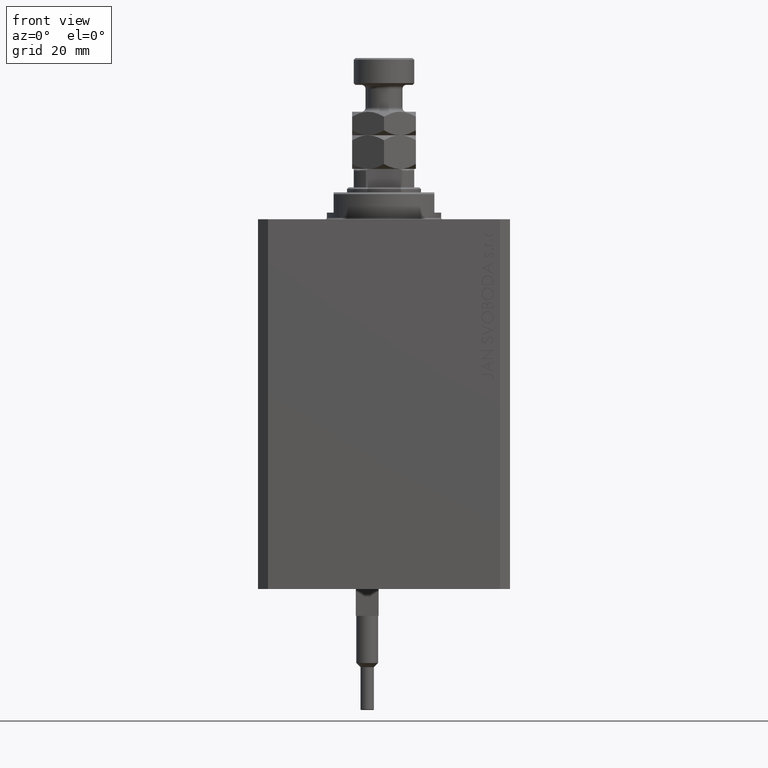
[diagram: clean part render]
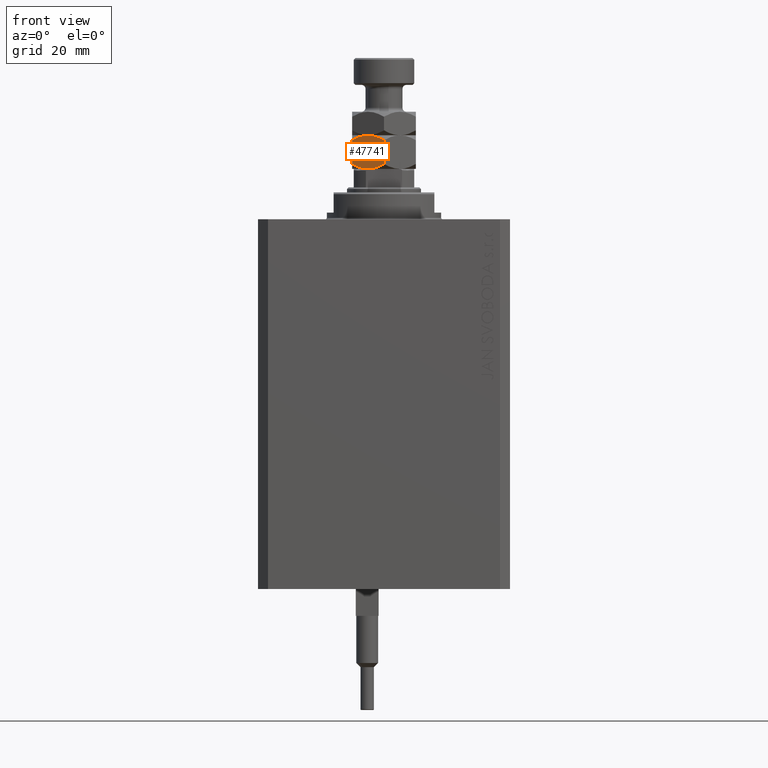
[diagram: same view with one face highlighted and labeled with its STEP entity id]
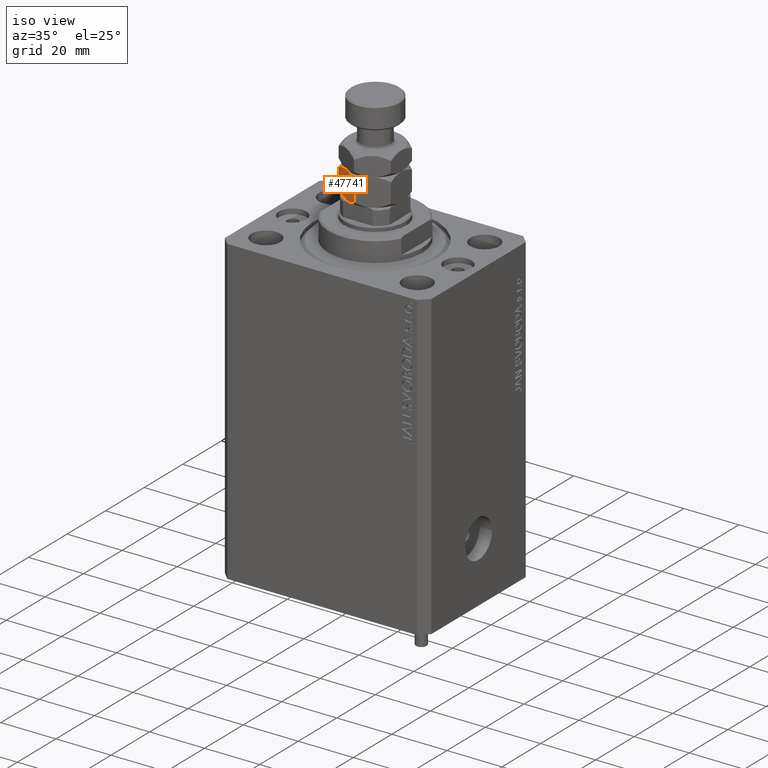
[diagram: same view with one face highlighted and labeled with its STEP entity id]
A machine part, front view. The second image highlights one B-rep face of the part: STEP entity #47741.
A second angle (iso view) of the same face is appended — the face is thin or edge-on in the first view.
In plain terms, the highlighted planar face has unit normal (0.5, 0.866, 0).
Its self-contained STEP definition (entity closure, byte-faithful):
#464 = CARTESIAN_POINT ( 'NONE',  ( -8.755131854751340370, -5.914877381471537632, 8.960394709567209404 ) ) ;
#1480 = CARTESIAN_POINT ( 'NONE',  ( -5.576215397865947665, -7.750225653585648189, 8.690558038829119507E-16 ) ) ;
#2822 = B_SPLINE_CURVE_WITH_KNOTS ( 'NONE', 3,
 ( #22395, #45506, #26159, #44764, #21906, #33946, #29938, #14146 ),
 .UNSPECIFIED., .F., .F.,
 ( 4, 2, 2, 4 ),
 ( 2.544312669954764994E-07, 0.002843014744722341131, 0.004264394901450013937, 0.005685775058177687177 ),
 .UNSPECIFIED. ) ;
#2850 = DIRECTION ( 'NONE',  ( -0.8660254037844387076, 0.4999999999999998890, 0.000000000000000000 ) ) ;
#4319 = EDGE_CURVE ( 'NONE', #8453, #39325, #22872, .T. ) ;
#6131 = CARTESIAN_POINT ( 'NONE',  ( -3.923784602134047894, -8.704257018318688921, 10.00000000000000178 ) ) ;
#6327 = DIRECTION ( 'NONE',  ( -0.000000000000000000, -0.000000000000000000, -1.000000000000000000 ) ) ;
#6623 = DIRECTION ( 'NONE',  ( 0.4999999999999998890, 0.8660254037844387076, -0.000000000000000000 ) ) ;
#8453 = VERTEX_POINT ( 'NONE', #8703 ) ;
#8703 = CARTESIAN_POINT ( 'NONE',  ( -4.749999999999998224, -8.227241335952168555, 10.00000000000000000 ) ) ;
#9024 = CARTESIAN_POINT ( 'NONE',  ( -9.500000000000000000, -5.484827557301445999, 1.469655114602884893 ) ) ;
#10741 = CARTESIAN_POINT ( 'NONE',  ( -9.500000000000000000, -5.484827557301445999, 1.469655114602884893 ) ) ;
#13304 = ORIENTED_EDGE ( 'NONE', *, *, #15896, .F. ) ;
#14146 = CARTESIAN_POINT ( 'NONE',  ( -4.749999999999998224, -8.227241335952168555, 0.000000000000000000 ) ) ;
#14639 = CARTESIAN_POINT ( 'NONE',  ( -4.749999999999998224, -8.227241335952168555, 10.00000000000000000 ) ) ;
#14772 = EDGE_CURVE ( 'NONE', #23984, #8453, #15666, .T. ) ;
#15357 = CARTESIAN_POINT ( 'NONE',  ( -9.500000000000000000, -5.484827557301445999, 8.530344885397115107 ) ) ;
#15666 = B_SPLINE_CURVE_WITH_KNOTS ( 'NONE', 3,
 ( #17885, #464, #48512, #15769, #31078, #33688, #46412, #25402 ),
 .UNSPECIFIED., .F., .F.,
 ( 4, 2, 2, 4 ),
 ( 2.544312669948822529E-07, 0.002843014744722344167, 0.004264394901450020009, 0.005685775058177695851 ),
 .UNSPECIFIED. ) ;
#15769 = CARTESIAN_POINT ( 'NONE',  ( -6.809745054052672053, -7.038046974532858435, 9.716537861568809831 ) ) ;
#15896 = EDGE_CURVE ( 'NONE', #31959, #18299, #31770, .T. ) ;
#16863 = DIRECTION ( 'NONE',  ( -0.000000000000000000, -0.000000000000000000, -1.000000000000000000 ) ) ;
#17885 = CARTESIAN_POINT ( 'NONE',  ( -9.500000000000000000, -5.484827557301445999, 8.530344885397115107 ) ) ;
#18299 = VERTEX_POINT ( 'NONE', #10741 ) ;
#18402 = FACE_OUTER_BOUND ( 'NONE', #22705, .T. ) ;
#18861 = EDGE_CURVE ( 'NONE', #34773, #31959, #2822, .T. ) ;
#21419 = CARTESIAN_POINT ( 'NONE',  ( -0.7440058743609659908, -10.54010312276191996, 8.959896877238168855 ) ) ;
#21723 = CARTESIAN_POINT ( 'NONE',  ( -4.749999999999998224, -8.227241335952168555, 0.000000000000000000 ) ) ;
#21906 = CARTESIAN_POINT ( 'NONE',  ( -3.091726368128225211, -9.184646063703393537, 0.1797418547120354371 ) ) ;
#22236 = EDGE_CURVE ( 'NONE', #23984, #18299, #44472, .T. ) ;
#22395 = CARTESIAN_POINT ( 'NONE',  ( -2.946964139499808652E-15, -10.96965511460288667, 1.469655114602881563 ) ) ;
#22705 = EDGE_LOOP ( 'NONE', ( #38903, #35172, #44138, #43082, #23120, #13304 ) ) ;
#22872 = B_SPLINE_CURVE_WITH_KNOTS ( 'NONE', 3,
 ( #14639, #6131, #36990, #48539, #21419, #36731 ),
 .UNSPECIFIED., .F., .F.,
 ( 4, 2, 4 ),
 ( 0.005685775058177695851, 0.008508623398180325398, 0.01133147173818295494 ),
 .UNSPECIFIED. ) ;
#23120 = ORIENTED_EDGE ( 'NONE', *, *, #22236, .T. ) ;
#23984 = VERTEX_POINT ( 'NONE', #15357 ) ;
#24068 = CARTESIAN_POINT ( 'NONE',  ( -8.755994125639036341, -5.914379549142410930, 1.040103122761829813 ) ) ;
#24893 = LINE ( 'NONE', #43489, #36432 ) ;
#24928 = CARTESIAN_POINT ( 'NONE',  ( -3.001642536556159024E-15, -10.96965511460288667, 8.530344885397118659 ) ) ;
#25229 = CARTESIAN_POINT ( 'NONE',  ( -7.990178599141542826, -6.356523349515333265, 0.6716369694512676070 ) ) ;
#25383 = CARTESIAN_POINT ( 'NONE',  ( -9.500000000000000000, -5.484827557301445999, 10.00000000000000000 ) ) ;
#25402 = CARTESIAN_POINT ( 'NONE',  ( -4.749999999999998224, -8.227241335952168555, 10.00000000000000000 ) ) ;
#26157 = PLANE ( 'NONE',  #27165 ) ;
#26159 = CARTESIAN_POINT ( 'NONE',  ( -1.506594318812384703, -10.09982247907699993, 0.6741748824712766597 ) ) ;
#27165 = AXIS2_PLACEMENT_3D ( 'NONE', #49515, #6623, #2850 ) ;
#28167 = VECTOR ( 'NONE', #6327, 1000.000000000000000 ) ;
#29938 = CARTESIAN_POINT ( 'NONE',  ( -4.333978297711725602, -8.467431577757036365, 9.136662057716388954E-16 ) ) ;
#31078 = CARTESIAN_POINT ( 'NONE',  ( -6.408273631871771236, -7.269836608200942685, 9.820258145287965590 ) ) ;
#31770 = B_SPLINE_CURVE_WITH_KNOTS ( 'NONE', 3,
 ( #21723, #1480, #37035, #25229, #24068, #9024 ),
 .UNSPECIFIED., .F., .F.,
 ( 4, 2, 4 ),
 ( 0.005685775058177687177, 0.008508623398180320194, 0.01133147173818295321 ),
 .UNSPECIFIED. ) ;
#31959 = VERTEX_POINT ( 'NONE', #33086 ) ;
#33086 = CARTESIAN_POINT ( 'NONE',  ( -4.749999999999998224, -8.227241335952168555, 0.000000000000000000 ) ) ;
#33524 = EDGE_CURVE ( 'NONE', #39325, #34773, #24893, .T. ) ;
#33688 = CARTESIAN_POINT ( 'NONE',  ( -5.588267949974986770, -7.743267109381074320, 9.962294231267001976 ) ) ;
#33946 = CARTESIAN_POINT ( 'NONE',  ( -3.911732050025008789, -8.711215562523268119, 0.03770576873300111181 ) ) ;
#34773 = VERTEX_POINT ( 'NONE', #36004 ) ;
#35172 = ORIENTED_EDGE ( 'NONE', *, *, #33524, .F. ) ;
#36004 = CARTESIAN_POINT ( 'NONE',  ( -2.946964139499808652E-15, -10.96965511460288667, 1.469655114602881563 ) ) ;
#36432 = VECTOR ( 'NONE', #16863, 1000.000000000000000 ) ;
#36731 = CARTESIAN_POINT ( 'NONE',  ( -3.001642536556159024E-15, -10.96965511460288667, 8.530344885397118659 ) ) ;
#36990 = CARTESIAN_POINT ( 'NONE',  ( -3.111617971331826382, -9.173161641239186537, 9.854124384224533628 ) ) ;
#37035 = CARTESIAN_POINT ( 'NONE',  ( -6.388382028668172730, -7.281321030665154126, 0.1458756157754690086 ) ) ;
#38903 = ORIENTED_EDGE ( 'NONE', *, *, #18861, .F. ) ;
#39325 = VERTEX_POINT ( 'NONE', #24928 ) ;
#43082 = ORIENTED_EDGE ( 'NONE', *, *, #14772, .F. ) ;
#43489 = CARTESIAN_POINT ( 'NONE',  ( -3.035766082959412415E-15, -10.96965511460288667, 10.00000000000000000 ) ) ;
#44138 = ORIENTED_EDGE ( 'NONE', *, *, #4319, .F. ) ;
#44472 = LINE ( 'NONE', #25383, #28167 ) ;
#44764 = CARTESIAN_POINT ( 'NONE',  ( -2.690254945947328391, -9.416435697371479563, 0.2834621384311885595 ) ) ;
#45506 = CARTESIAN_POINT ( 'NONE',  ( -0.7448681452486625165, -10.53960529043279770, 1.039605290432793705 ) ) ;
#46412 = CARTESIAN_POINT ( 'NONE',  ( -5.166021702288271733, -7.987051094147306074, 10.00000000000000000 ) ) ;
#47741 = ADVANCED_FACE ( 'NONE', ( #18402 ), #26157, .F. ) ;
#48512 = CARTESIAN_POINT ( 'NONE',  ( -7.993405681187616629, -6.354660192827335408, 9.325825117528722785 ) ) ;
#48539 = CARTESIAN_POINT ( 'NONE',  ( -1.509821400858457840, -10.09795932238900029, 9.328363030548734613 ) ) ;
#49515 = CARTESIAN_POINT ( 'NONE',  ( -9.500000000000000000, -5.484827557301445999, 10.00000000000000000 ) ) ;